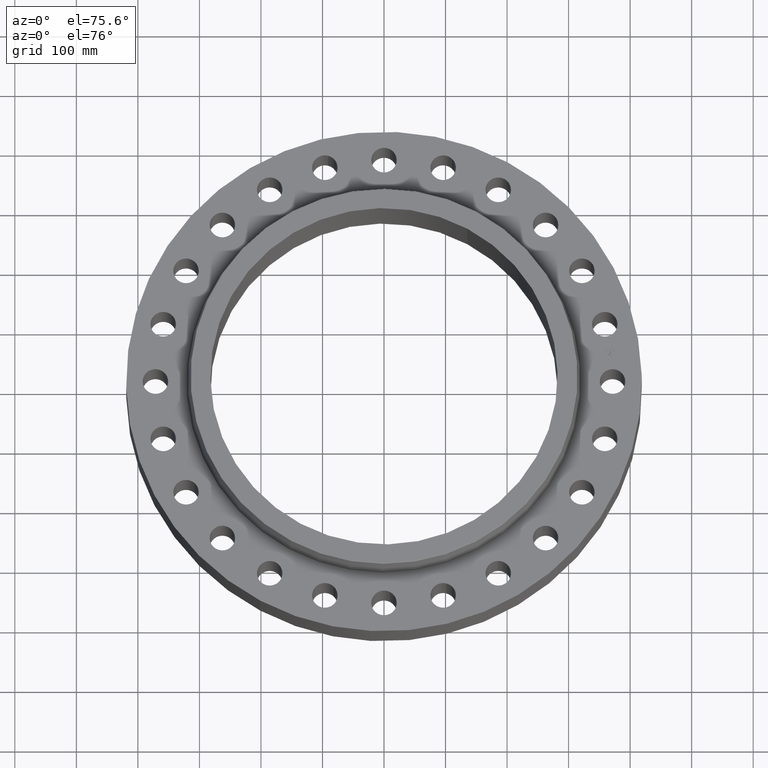
[diagram: clean part render]
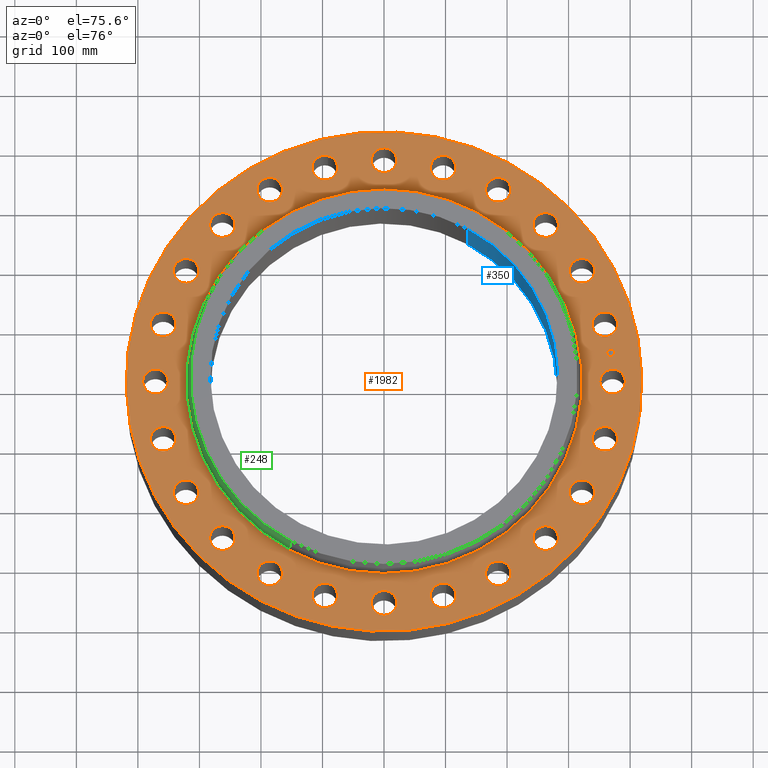
[diagram: same view with three faces highlighted in distinct colors, each labeled with its STEP entity id]
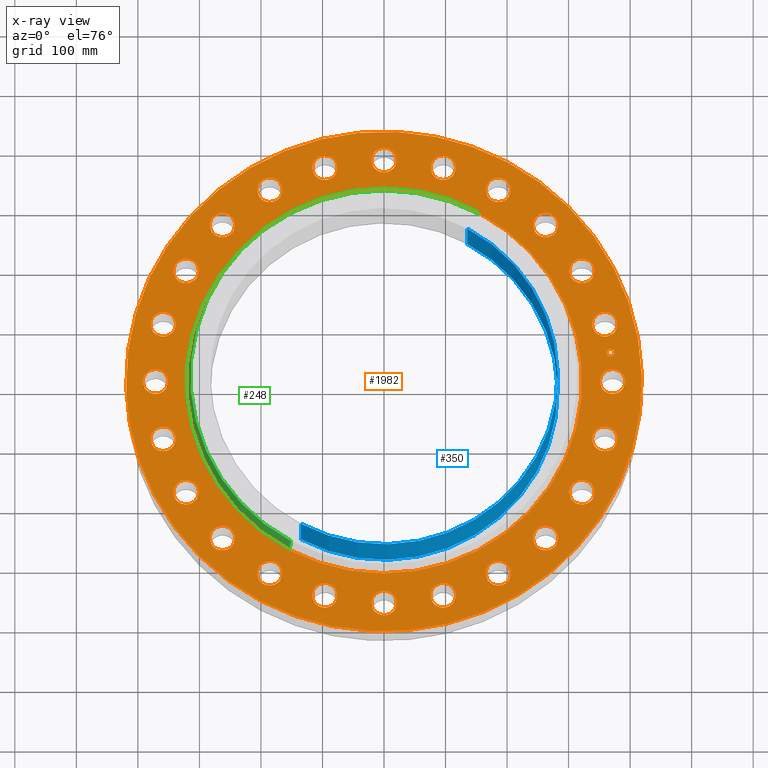
[diagram: x-ray of the same camera — body ghosted, the three highlighted faces saturated]
A machine part, auxiliary view with three faces highlighted in distinct colors.
The next image is the same camera in x-ray (body ghosted, the three faces saturated) — at least one of them is partly hidden behind the body in this view.
Their STEP definitions:

[orange] entity #1982 — the highlighted planar face has unit normal (0, 0, -1).
#65=AXIS2_PLACEMENT_3D('Circle Axis2P3D',#63,#64,$) ;
#82=AXIS2_PLACEMENT_3D('Circle Axis2P3D',#80,#81,$) ;
#115=AXIS2_PLACEMENT_3D('Circle Axis2P3D',#113,#114,$) ;
#139=AXIS2_PLACEMENT_3D('Circle Axis2P3D',#137,#138,$) ;
#156=AXIS2_PLACEMENT_3D('Circle Axis2P3D',#154,#155,$) ;
#191=AXIS2_PLACEMENT_3D('Circle Axis2P3D',#189,#190,$) ;
#887=AXIS2_PLACEMENT_3D('Circle Axis2P3D',#885,#886,$) ;
#899=AXIS2_PLACEMENT_3D('Circle Axis2P3D',#897,#898,$) ;
#930=AXIS2_PLACEMENT_3D('Circle Axis2P3D',#928,#929,$) ;
#942=AXIS2_PLACEMENT_3D('Circle Axis2P3D',#940,#941,$) ;
#973=AXIS2_PLACEMENT_3D('Circle Axis2P3D',#971,#972,$) ;
#985=AXIS2_PLACEMENT_3D('Circle Axis2P3D',#983,#984,$) ;
#1016=AXIS2_PLACEMENT_3D('Circle Axis2P3D',#1014,#1015,$) ;
#1028=AXIS2_PLACEMENT_3D('Circle Axis2P3D',#1026,#1027,$) ;
#1059=AXIS2_PLACEMENT_3D('Circle Axis2P3D',#1057,#1058,$) ;
#1071=AXIS2_PLACEMENT_3D('Circle Axis2P3D',#1069,#1070,$) ;
#1102=AXIS2_PLACEMENT_3D('Circle Axis2P3D',#1100,#1101,$) ;
#1114=AXIS2_PLACEMENT_3D('Circle Axis2P3D',#1112,#1113,$) ;
#1145=AXIS2_PLACEMENT_3D('Circle Axis2P3D',#1143,#1144,$) ;
#1157=AXIS2_PLACEMENT_3D('Circle Axis2P3D',#1155,#1156,$) ;
#1188=AXIS2_PLACEMENT_3D('Circle Axis2P3D',#1186,#1187,$) ;
#1200=AXIS2_PLACEMENT_3D('Circle Axis2P3D',#1198,#1199,$) ;
#1231=AXIS2_PLACEMENT_3D('Circle Axis2P3D',#1229,#1230,$) ;
#1243=AXIS2_PLACEMENT_3D('Circle Axis2P3D',#1241,#1242,$) ;
#1274=AXIS2_PLACEMENT_3D('Circle Axis2P3D',#1272,#1273,$) ;
#1286=AXIS2_PLACEMENT_3D('Circle Axis2P3D',#1284,#1285,$) ;
#1317=AXIS2_PLACEMENT_3D('Circle Axis2P3D',#1315,#1316,$) ;
#1329=AXIS2_PLACEMENT_3D('Circle Axis2P3D',#1327,#1328,$) ;
#1360=AXIS2_PLACEMENT_3D('Circle Axis2P3D',#1358,#1359,$) ;
#1372=AXIS2_PLACEMENT_3D('Circle Axis2P3D',#1370,#1371,$) ;
#1403=AXIS2_PLACEMENT_3D('Circle Axis2P3D',#1401,#1402,$) ;
#1415=AXIS2_PLACEMENT_3D('Circle Axis2P3D',#1413,#1414,$) ;
#1446=AXIS2_PLACEMENT_3D('Circle Axis2P3D',#1444,#1445,$) ;
#1458=AXIS2_PLACEMENT_3D('Circle Axis2P3D',#1456,#1457,$) ;
#1489=AXIS2_PLACEMENT_3D('Circle Axis2P3D',#1487,#1488,$) ;
#1501=AXIS2_PLACEMENT_3D('Circle Axis2P3D',#1499,#1500,$) ;
#1532=AXIS2_PLACEMENT_3D('Circle Axis2P3D',#1530,#1531,$) ;
#1544=AXIS2_PLACEMENT_3D('Circle Axis2P3D',#1542,#1543,$) ;
#1575=AXIS2_PLACEMENT_3D('Circle Axis2P3D',#1573,#1574,$) ;
#1587=AXIS2_PLACEMENT_3D('Circle Axis2P3D',#1585,#1586,$) ;
#1618=AXIS2_PLACEMENT_3D('Circle Axis2P3D',#1616,#1617,$) ;
#1630=AXIS2_PLACEMENT_3D('Circle Axis2P3D',#1628,#1629,$) ;
#1661=AXIS2_PLACEMENT_3D('Circle Axis2P3D',#1659,#1660,$) ;
#1673=AXIS2_PLACEMENT_3D('Circle Axis2P3D',#1671,#1672,$) ;
#1704=AXIS2_PLACEMENT_3D('Circle Axis2P3D',#1702,#1703,$) ;
#1716=AXIS2_PLACEMENT_3D('Circle Axis2P3D',#1714,#1715,$) ;
#1747=AXIS2_PLACEMENT_3D('Circle Axis2P3D',#1745,#1746,$) ;
#1759=AXIS2_PLACEMENT_3D('Circle Axis2P3D',#1757,#1758,$) ;
#1790=AXIS2_PLACEMENT_3D('Circle Axis2P3D',#1788,#1789,$) ;
#1802=AXIS2_PLACEMENT_3D('Circle Axis2P3D',#1800,#1801,$) ;
#1833=AXIS2_PLACEMENT_3D('Circle Axis2P3D',#1831,#1832,$) ;
#1845=AXIS2_PLACEMENT_3D('Circle Axis2P3D',#1843,#1844,$) ;
#1858=AXIS2_PLACEMENT_3D('Plane Axis2P3D',#1855,#1856,#1857) ;
#1966=AXIS2_PLACEMENT_3D('Circle Axis2P3D',#1964,#1965,$) ;
#1975=AXIS2_PLACEMENT_3D('Circle Axis2P3D',#1973,#1974,$) ;
#46=CARTESIAN_POINT('Vertex',(13.9097702121,0.390731813964,2.57000000001)) ;
#60=CARTESIAN_POINT('Vertex',(15.340229788,-0.390731813964,2.57000000001)) ;
#63=CARTESIAN_POINT('Axis2P3D Location',(14.6250000001,0.,2.57000000001)) ;
#80=CARTESIAN_POINT('Axis2P3D Location',(14.6250000001,0.,2.57000000001)) ;
#110=CARTESIAN_POINT('Vertex',(-7.910521387,-14.4801122712,2.57000000001)) ;
#113=CARTESIAN_POINT('Axis2P3D Location',(0.,0.,2.57000000001)) ;
#117=CARTESIAN_POINT('Vertex',(7.910521387,14.4801122712,2.57000000001)) ;
#137=CARTESIAN_POINT('Axis2P3D Location',(0.,0.,2.57000000001)) ;
#154=CARTESIAN_POINT('Axis2P3D Location',(0.,0.,2.57000000001)) ;
#158=CARTESIAN_POINT('Vertex',(6.07688457246,11.1236625962,2.57000000001)) ;
#160=CARTESIAN_POINT('Vertex',(-6.07688457246,-11.1236625962,2.57000000001)) ;
#189=CARTESIAN_POINT('Axis2P3D Location',(0.,0.,2.57000000001)) ;
#875=CARTESIAN_POINT('Vertex',(-13.5369351206,3.22269549363,2.57000000001)) ;
#882=CARTESIAN_POINT('Vertex',(-14.7163952985,4.34776157564,2.57000000001)) ;
#885=CARTESIAN_POINT('Axis2P3D Location',(-14.1266652095,3.78522853464,2.57000000001)) ;
#897=CARTESIAN_POINT('Axis2P3D Location',(-14.1266652095,3.78522853464,2.57000000001)) ;
#918=CARTESIAN_POINT('Vertex',(12.2415802715,-6.6165014291,2.57000000001)) ;
#925=CARTESIAN_POINT('Vertex',(13.0896627893,-8.00849857096,2.57000000001)) ;
#928=CARTESIAN_POINT('Axis2P3D Location',(12.6656215304,-7.31250000003,2.57000000001)) ;
#940=CARTESIAN_POINT('Axis2P3D Location',(12.6656215304,-7.31250000003,2.57000000001)) ;
#961=CARTESIAN_POINT('Vertex',(-12.2415802715,6.6165014291,2.57000000001)) ;
#968=CARTESIAN_POINT('Vertex',(-13.0896627893,8.00849857096,2.57000000001)) ;
#971=CARTESIAN_POINT('Axis2P3D Location',(-12.6656215304,7.31250000003,2.57000000001)) ;
#983=CARTESIAN_POINT('Axis2P3D Location',(-12.6656215304,7.31250000003,2.57000000001)) ;
#1004=CARTESIAN_POINT('Vertex',(10.111981957,-9.55940372645,2.57000000001)) ;
#1011=CARTESIAN_POINT('Vertex',(10.5708913928,-11.1234696233,2.57000000001)) ;
#1014=CARTESIAN_POINT('Axis2P3D Location',(10.3414366749,-10.3414366749,2.57000000001)) ;
#1026=CARTESIAN_POINT('Axis2P3D Location',(10.3414366749,-10.3414366749,2.57000000001)) ;
#1047=CARTESIAN_POINT('Vertex',(-10.111981957,9.55940372645,2.57000000001)) ;
#1054=CARTESIAN_POINT('Vertex',(-10.5708913928,11.1234696233,2.57000000001)) ;
#1057=CARTESIAN_POINT('Axis2P3D Location',(-10.3414366749,10.3414366749,2.57000000001)) ;
#1069=CARTESIAN_POINT('Axis2P3D Location',(-10.3414366749,10.3414366749,2.57000000001)) ;
#1090=CARTESIAN_POINT('Vertex',(7.29326878302,-11.8508484575,2.57000000001)) ;
#1097=CARTESIAN_POINT('Vertex',(7.33173121704,-13.4803946033,2.57000000001)) ;
#1100=CARTESIAN_POINT('Axis2P3D Location',(7.31250000003,-12.6656215304,2.57000000001)) ;
#1112=CARTESIAN_POINT('Axis2P3D Location',(7.31250000003,-12.6656215304,2.57000000001)) ;
#1133=CARTESIAN_POINT('Vertex',(-7.29326878302,11.8508484575,2.57000000001)) ;
#1140=CARTESIAN_POINT('Vertex',(-7.33173121704,13.4803946033,2.57000000001)) ;
#1143=CARTESIAN_POINT('Axis2P3D Location',(-7.31250000003,12.6656215304,2.57000000001)) ;
#1155=CARTESIAN_POINT('Axis2P3D Location',(-7.31250000003,12.6656215304,2.57000000001)) ;
#1176=CARTESIAN_POINT('Vertex',(3.97753139416,-13.3346774506,2.57000000001)) ;
#1183=CARTESIAN_POINT('Vertex',(3.59292567512,-14.9186529684,2.57000000001)) ;
#1186=CARTESIAN_POINT('Axis2P3D Location',(3.78522853464,-14.1266652095,2.57000000001)) ;
#1198=CARTESIAN_POINT('Axis2P3D Location',(3.78522853464,-14.1266652095,2.57000000001)) ;
#1219=CARTESIAN_POINT('Vertex',(-3.97753139416,13.3346774506,2.57000000001)) ;
#1226=CARTESIAN_POINT('Vertex',(-3.59292567512,14.9186529684,2.57000000001)) ;
#1229=CARTESIAN_POINT('Axis2P3D Location',(-3.78522853464,14.1266652095,2.57000000001)) ;
#1241=CARTESIAN_POINT('Axis2P3D Location',(-3.78522853464,14.1266652095,2.57000000001)) ;
#1262=CARTESIAN_POINT('Vertex',(0.390731813964,-13.9097702121,2.57000000001)) ;
#1269=CARTESIAN_POINT('Vertex',(-0.390731813964,-15.340229788,2.57000000001)) ;
#1272=CARTESIAN_POINT('Axis2P3D Location',(-1.34240690453E-015,-14.6250000001,2.57000000001)) ;
#1284=CARTESIAN_POINT('Axis2P3D Location',(-1.34240690453E-015,-14.6250000001,2.57000000001)) ;
#1305=CARTESIAN_POINT('Vertex',(-0.390731813964,13.9097702121,2.57000000001)) ;
#1312=CARTESIAN_POINT('Vertex',(0.390731813964,15.340229788,2.57000000001)) ;
#1315=CARTESIAN_POINT('Axis2P3D Location',(-2.68656891564E-015,14.6250000001,2.57000000001)) ;
#1327=CARTESIAN_POINT('Axis2P3D Location',(-2.68656891564E-015,14.6250000001,2.57000000001)) ;
#1348=CARTESIAN_POINT('Vertex',(-3.22269549363,-13.5369351206,2.57000000001)) ;
#1355=CARTESIAN_POINT('Vertex',(-4.34776157564,-14.7163952985,2.57000000001)) ;
#1358=CARTESIAN_POINT('Axis2P3D Location',(-3.78522853464,-14.1266652095,2.57000000001)) ;
#1370=CARTESIAN_POINT('Axis2P3D Location',(-3.78522853464,-14.1266652095,2.57000000001)) ;
#1391=CARTESIAN_POINT('Vertex',(3.22269549363,13.5369351206,2.57000000001)) ;
#1398=CARTESIAN_POINT('Vertex',(4.34776157564,14.7163952985,2.57000000001)) ;
#1401=CARTESIAN_POINT('Axis2P3D Location',(3.78522853464,14.1266652095,2.57000000001)) ;
#1413=CARTESIAN_POINT('Axis2P3D Location',(3.78522853464,14.1266652095,2.57000000001)) ;
#1434=CARTESIAN_POINT('Vertex',(-6.6165014291,-12.2415802715,2.57000000001)) ;
#1441=CARTESIAN_POINT('Vertex',(-8.00849857096,-13.0896627893,2.57000000001)) ;
#1444=CARTESIAN_POINT('Axis2P3D Location',(-7.31250000003,-12.6656215304,2.57000000001)) ;
#1456=CARTESIAN_POINT('Axis2P3D Location',(-7.31250000003,-12.6656215304,2.57000000001)) ;
#1477=CARTESIAN_POINT('Vertex',(6.6165014291,12.2415802715,2.57000000001)) ;
#1484=CARTESIAN_POINT('Vertex',(8.00849857096,13.0896627893,2.57000000001)) ;
#1487=CARTESIAN_POINT('Axis2P3D Location',(7.31250000003,12.6656215304,2.57000000001)) ;
#1499=CARTESIAN_POINT('Axis2P3D Location',(7.31250000003,12.6656215304,2.57000000001)) ;
#1520=CARTESIAN_POINT('Vertex',(-9.55940372645,-10.111981957,2.57000000001)) ;
#1527=CARTESIAN_POINT('Vertex',(-11.1234696233,-10.5708913928,2.57000000001)) ;
#1530=CARTESIAN_POINT('Axis2P3D Location',(-10.3414366749,-10.3414366749,2.57000000001)) ;
#1542=CARTESIAN_POINT('Axis2P3D Location',(-10.3414366749,-10.3414366749,2.57000000001)) ;
#1563=CARTESIAN_POINT('Vertex',(9.55940372645,10.111981957,2.57000000001)) ;
#1570=CARTESIAN_POINT('Vertex',(11.1234696233,10.5708913928,2.57000000001)) ;
#1573=CARTESIAN_POINT('Axis2P3D Location',(10.3414366749,10.3414366749,2.57000000001)) ;
#1585=CARTESIAN_POINT('Axis2P3D Location',(10.3414366749,10.3414366749,2.57000000001)) ;
#1606=CARTESIAN_POINT('Vertex',(-11.8508484575,-7.29326878302,2.57000000001)) ;
#1613=CARTESIAN_POINT('Vertex',(-13.4803946033,-7.33173121704,2.57000000001)) ;
#1616=CARTESIAN_POINT('Axis2P3D Location',(-12.6656215304,-7.31250000003,2.57000000001)) ;
#1628=CARTESIAN_POINT('Axis2P3D Location',(-12.6656215304,-7.31250000003,2.57000000001)) ;
#1649=CARTESIAN_POINT('Vertex',(11.8508484575,7.29326878302,2.57000000001)) ;
#1656=CARTESIAN_POINT('Vertex',(13.4803946033,7.33173121704,2.57000000001)) ;
#1659=CARTESIAN_POINT('Axis2P3D Location',(12.6656215304,7.31250000003,2.57000000001)) ;
#1671=CARTESIAN_POINT('Axis2P3D Location',(12.6656215304,7.31250000003,2.57000000001)) ;
#1692=CARTESIAN_POINT('Vertex',(-13.3346774506,-3.97753139416,2.57000000001)) ;
#1699=CARTESIAN_POINT('Vertex',(-14.9186529684,-3.59292567512,2.57000000001)) ;
#1702=CARTESIAN_POINT('Axis2P3D Location',(-14.1266652095,-3.78522853464,2.57000000001)) ;
#1714=CARTESIAN_POINT('Axis2P3D Location',(-14.1266652095,-3.78522853464,2.57000000001)) ;
#1735=CARTESIAN_POINT('Vertex',(13.3346774506,3.97753139416,2.57000000001)) ;
#1742=CARTESIAN_POINT('Vertex',(14.9186529684,3.59292567512,2.57000000001)) ;
#1745=CARTESIAN_POINT('Axis2P3D Location',(14.1266652095,3.78522853464,2.57000000001)) ;
#1757=CARTESIAN_POINT('Axis2P3D Location',(14.1266652095,3.78522853464,2.57000000001)) ;
#1778=CARTESIAN_POINT('Vertex',(-13.9097702121,-0.390731813964,2.57000000001)) ;
#1785=CARTESIAN_POINT('Vertex',(-15.340229788,0.390731813964,2.57000000001)) ;
#1788=CARTESIAN_POINT('Axis2P3D Location',(-14.6250000001,-1.79104594376E-015,2.57000000001)) ;
#1800=CARTESIAN_POINT('Axis2P3D Location',(-14.6250000001,-1.79104594376E-015,2.57000000001)) ;
#1821=CARTESIAN_POINT('Vertex',(13.5369351206,-3.22269549363,2.57000000001)) ;
#1828=CARTESIAN_POINT('Vertex',(14.7163952985,-4.34776157564,2.57000000001)) ;
#1831=CARTESIAN_POINT('Axis2P3D Location',(14.1266652095,-3.78522853464,2.57000000001)) ;
#1843=CARTESIAN_POINT('Axis2P3D Location',(14.1266652095,-3.78522853464,2.57000000001)) ;
#1855=CARTESIAN_POINT('Axis2P3D Location',(0.,16.5000000001,2.57000000001)) ;
#1964=CARTESIAN_POINT('Axis2P3D Location',(14.4998810976,1.90894556123,2.57000000001)) ;
#1968=CARTESIAN_POINT('Vertex',(14.4675758651,2.15432816442,2.57000000001)) ;
#1970=CARTESIAN_POINT('Vertex',(14.5321863302,1.66356295803,2.57000000001)) ;
#1973=CARTESIAN_POINT('Axis2P3D Location',(14.4998810976,1.90894556123,2.57000000001)) ;
#64=DIRECTION('Axis2P3D Direction',(0.,-0.,-0.0393700787402)) ;
#81=DIRECTION('Axis2P3D Direction',(0.,-0.,-0.0393700787402)) ;
#114=DIRECTION('Axis2P3D Direction',(0.,0.,-0.0393700787402)) ;
#138=DIRECTION('Axis2P3D Direction',(0.,0.,-0.0393700787402)) ;
#155=DIRECTION('Axis2P3D Direction',(0.,0.,-0.0393700787402)) ;
#190=DIRECTION('Axis2P3D Direction',(0.,0.,-0.0393700787402)) ;
#886=DIRECTION('Axis2P3D Direction',(0.,0.,-0.0393700787402)) ;
#898=DIRECTION('Axis2P3D Direction',(0.,0.,-0.0393700787402)) ;
#929=DIRECTION('Axis2P3D Direction',(0.,-0.,-0.0393700787402)) ;
#941=DIRECTION('Axis2P3D Direction',(0.,-0.,-0.0393700787402)) ;
#972=DIRECTION('Axis2P3D Direction',(0.,0.,-0.0393700787402)) ;
#984=DIRECTION('Axis2P3D Direction',(0.,0.,-0.0393700787402)) ;
#1015=DIRECTION('Axis2P3D Direction',(0.,-0.,-0.0393700787402)) ;
#1027=DIRECTION('Axis2P3D Direction',(0.,-0.,-0.0393700787402)) ;
#1058=DIRECTION('Axis2P3D Direction',(0.,0.,-0.0393700787402)) ;
#1070=DIRECTION('Axis2P3D Direction',(0.,0.,-0.0393700787402)) ;
#1101=DIRECTION('Axis2P3D Direction',(0.,-0.,-0.0393700787402)) ;
#1113=DIRECTION('Axis2P3D Direction',(0.,-0.,-0.0393700787402)) ;
#1144=DIRECTION('Axis2P3D Direction',(0.,0.,-0.0393700787402)) ;
#1156=DIRECTION('Axis2P3D Direction',(0.,0.,-0.0393700787402)) ;
#1187=DIRECTION('Axis2P3D Direction',(0.,-0.,-0.0393700787402)) ;
#1199=DIRECTION('Axis2P3D Direction',(0.,-0.,-0.0393700787402)) ;
#1230=DIRECTION('Axis2P3D Direction',(0.,0.,-0.0393700787402)) ;
#1242=DIRECTION('Axis2P3D Direction',(0.,0.,-0.0393700787402)) ;
#1273=DIRECTION('Axis2P3D Direction',(0.,-0.,-0.0393700787402)) ;
#1285=DIRECTION('Axis2P3D Direction',(0.,-0.,-0.0393700787402)) ;
#1316=DIRECTION('Axis2P3D Direction',(0.,0.,-0.0393700787402)) ;
#1328=DIRECTION('Axis2P3D Direction',(0.,0.,-0.0393700787402)) ;
#1359=DIRECTION('Axis2P3D Direction',(-0.,0.,-0.0393700787402)) ;
#1371=DIRECTION('Axis2P3D Direction',(-0.,0.,-0.0393700787402)) ;
#1402=DIRECTION('Axis2P3D Direction',(0.,0.,-0.0393700787402)) ;
#1414=DIRECTION('Axis2P3D Direction',(0.,0.,-0.0393700787402)) ;
#1445=DIRECTION('Axis2P3D Direction',(-0.,0.,-0.0393700787402)) ;
#1457=DIRECTION('Axis2P3D Direction',(-0.,0.,-0.0393700787402)) ;
#1488=DIRECTION('Axis2P3D Direction',(0.,0.,-0.0393700787402)) ;
#1500=DIRECTION('Axis2P3D Direction',(0.,0.,-0.0393700787402)) ;
#1531=DIRECTION('Axis2P3D Direction',(-0.,0.,-0.0393700787402)) ;
#1543=DIRECTION('Axis2P3D Direction',(-0.,0.,-0.0393700787402)) ;
#1574=DIRECTION('Axis2P3D Direction',(0.,0.,-0.0393700787402)) ;
#1586=DIRECTION('Axis2P3D Direction',(0.,0.,-0.0393700787402)) ;
#1617=DIRECTION('Axis2P3D Direction',(-0.,0.,-0.0393700787402)) ;
#1629=DIRECTION('Axis2P3D Direction',(-0.,0.,-0.0393700787402)) ;
#1660=DIRECTION('Axis2P3D Direction',(0.,0.,-0.0393700787402)) ;
#1672=DIRECTION('Axis2P3D Direction',(0.,0.,-0.0393700787402)) ;
#1703=DIRECTION('Axis2P3D Direction',(-0.,0.,-0.0393700787402)) ;
#1715=DIRECTION('Axis2P3D Direction',(-0.,0.,-0.0393700787402)) ;
#1746=DIRECTION('Axis2P3D Direction',(0.,0.,-0.0393700787402)) ;
#1758=DIRECTION('Axis2P3D Direction',(0.,0.,-0.0393700787402)) ;
#1789=DIRECTION('Axis2P3D Direction',(-0.,0.,-0.0393700787402)) ;
#1801=DIRECTION('Axis2P3D Direction',(-0.,0.,-0.0393700787402)) ;
#1832=DIRECTION('Axis2P3D Direction',(0.,-0.,-0.0393700787402)) ;
#1844=DIRECTION('Axis2P3D Direction',(0.,-0.,-0.0393700787402)) ;
#1856=DIRECTION('Axis2P3D Direction',(0.,0.,-0.0393700787402)) ;
#1857=DIRECTION('Axis2P3D XDirection',(0.0393700787402,0.,0.)) ;
#1965=DIRECTION('Axis2P3D Direction',(0.,0.,-0.0393700787402)) ;
#1974=DIRECTION('Axis2P3D Direction',(0.,0.,-0.0393700787402)) ;
#1861=ORIENTED_EDGE('',*,*,#141,.F.) ;
#1862=ORIENTED_EDGE('',*,*,#119,.F.) ;
#1865=ORIENTED_EDGE('',*,*,#67,.T.) ;
#1866=ORIENTED_EDGE('',*,*,#84,.T.) ;
#1869=ORIENTED_EDGE('',*,*,#193,.T.) ;
#1870=ORIENTED_EDGE('',*,*,#162,.T.) ;
#1873=ORIENTED_EDGE('',*,*,#1847,.T.) ;
#1874=ORIENTED_EDGE('',*,*,#1835,.T.) ;
#1877=ORIENTED_EDGE('',*,*,#944,.T.) ;
#1878=ORIENTED_EDGE('',*,*,#932,.T.) ;
#1881=ORIENTED_EDGE('',*,*,#1030,.T.) ;
#1882=ORIENTED_EDGE('',*,*,#1018,.T.) ;
#1885=ORIENTED_EDGE('',*,*,#1116,.T.) ;
#1886=ORIENTED_EDGE('',*,*,#1104,.T.) ;
#1889=ORIENTED_EDGE('',*,*,#1202,.T.) ;
#1890=ORIENTED_EDGE('',*,*,#1190,.T.) ;
#1893=ORIENTED_EDGE('',*,*,#1288,.T.) ;
#1894=ORIENTED_EDGE('',*,*,#1276,.T.) ;
#1897=ORIENTED_EDGE('',*,*,#1374,.T.) ;
#1898=ORIENTED_EDGE('',*,*,#1362,.T.) ;
#1901=ORIENTED_EDGE('',*,*,#1460,.T.) ;
#1902=ORIENTED_EDGE('',*,*,#1448,.T.) ;
#1905=ORIENTED_EDGE('',*,*,#1546,.T.) ;
#1906=ORIENTED_EDGE('',*,*,#1534,.T.) ;
#1909=ORIENTED_EDGE('',*,*,#1632,.T.) ;
#1910=ORIENTED_EDGE('',*,*,#1620,.T.) ;
#1913=ORIENTED_EDGE('',*,*,#1718,.T.) ;
#1914=ORIENTED_EDGE('',*,*,#1706,.T.) ;
#1917=ORIENTED_EDGE('',*,*,#1804,.T.) ;
#1918=ORIENTED_EDGE('',*,*,#1792,.T.) ;
#1921=ORIENTED_EDGE('',*,*,#901,.T.) ;
#1922=ORIENTED_EDGE('',*,*,#889,.T.) ;
#1925=ORIENTED_EDGE('',*,*,#987,.T.) ;
#1926=ORIENTED_EDGE('',*,*,#975,.T.) ;
#1929=ORIENTED_EDGE('',*,*,#1073,.T.) ;
#1930=ORIENTED_EDGE('',*,*,#1061,.T.) ;
#1933=ORIENTED_EDGE('',*,*,#1159,.T.) ;
#1934=ORIENTED_EDGE('',*,*,#1147,.T.) ;
#1937=ORIENTED_EDGE('',*,*,#1245,.T.) ;
#1938=ORIENTED_EDGE('',*,*,#1233,.T.) ;
#1941=ORIENTED_EDGE('',*,*,#1331,.T.) ;
#1942=ORIENTED_EDGE('',*,*,#1319,.T.) ;
#1945=ORIENTED_EDGE('',*,*,#1417,.T.) ;
#1946=ORIENTED_EDGE('',*,*,#1405,.T.) ;
#1949=ORIENTED_EDGE('',*,*,#1503,.T.) ;
#1950=ORIENTED_EDGE('',*,*,#1491,.T.) ;
#1953=ORIENTED_EDGE('',*,*,#1589,.T.) ;
#1954=ORIENTED_EDGE('',*,*,#1577,.T.) ;
#1957=ORIENTED_EDGE('',*,*,#1675,.T.) ;
#1958=ORIENTED_EDGE('',*,*,#1663,.T.) ;
#1961=ORIENTED_EDGE('',*,*,#1761,.T.) ;
#1962=ORIENTED_EDGE('',*,*,#1749,.T.) ;
#1979=ORIENTED_EDGE('',*,*,#1972,.T.) ;
#1980=ORIENTED_EDGE('',*,*,#1977,.T.) ;
#1867=FACE_BOUND('',#1864,.T.) ;
#1871=FACE_BOUND('',#1868,.T.) ;
#1875=FACE_BOUND('',#1872,.T.) ;
#1879=FACE_BOUND('',#1876,.T.) ;
#1883=FACE_BOUND('',#1880,.T.) ;
#1887=FACE_BOUND('',#1884,.T.) ;
#1891=FACE_BOUND('',#1888,.T.) ;
#1895=FACE_BOUND('',#1892,.T.) ;
#1899=FACE_BOUND('',#1896,.T.) ;
#1903=FACE_BOUND('',#1900,.T.) ;
#1907=FACE_BOUND('',#1904,.T.) ;
#1911=FACE_BOUND('',#1908,.T.) ;
#1915=FACE_BOUND('',#1912,.T.) ;
#1919=FACE_BOUND('',#1916,.T.) ;
#1923=FACE_BOUND('',#1920,.T.) ;
#1927=FACE_BOUND('',#1924,.T.) ;
#1931=FACE_BOUND('',#1928,.T.) ;
#1935=FACE_BOUND('',#1932,.T.) ;
#1939=FACE_BOUND('',#1936,.T.) ;
#1943=FACE_BOUND('',#1940,.T.) ;
#1947=FACE_BOUND('',#1944,.T.) ;
#1951=FACE_BOUND('',#1948,.T.) ;
#1955=FACE_BOUND('',#1952,.T.) ;
#1959=FACE_BOUND('',#1956,.T.) ;
#1963=FACE_BOUND('',#1960,.T.) ;
#1981=FACE_BOUND('',#1978,.T.) ;
#1982=ADVANCED_FACE('PartBody',(#1863,#1867,#1871,#1875,#1879,#1883,#1887,#1891,#1895,#1899,#1903,#1907,#1911,#1915,#1919,#1923,#1927,#1931,#1935,#1939,#1943,#1947,#1951,#1955,#1959,#1963,#1981),#1859,.F.) ;
#66=CIRCLE('generated circle',#65,0.815000000003) ;
#83=CIRCLE('generated circle',#82,0.815000000003) ;
#116=CIRCLE('generated circle',#115,16.5000000001) ;
#140=CIRCLE('generated circle',#139,16.5000000001) ;
#157=CIRCLE('generated circle',#156,12.6753459779) ;
#192=CIRCLE('generated circle',#191,12.6753459779) ;
#888=CIRCLE('generated circle',#887,0.815000000003) ;
#900=CIRCLE('generated circle',#899,0.815000000003) ;
#931=CIRCLE('generated circle',#930,0.815000000003) ;
#943=CIRCLE('generated circle',#942,0.815000000003) ;
#974=CIRCLE('generated circle',#973,0.815000000003) ;
#986=CIRCLE('generated circle',#985,0.815000000003) ;
#1017=CIRCLE('generated circle',#1016,0.815000000003) ;
#1029=CIRCLE('generated circle',#1028,0.815000000003) ;
#1060=CIRCLE('generated circle',#1059,0.815000000003) ;
#1072=CIRCLE('generated circle',#1071,0.815000000003) ;
#1103=CIRCLE('generated circle',#1102,0.815000000003) ;
#1115=CIRCLE('generated circle',#1114,0.815000000003) ;
#1146=CIRCLE('generated circle',#1145,0.815000000003) ;
#1158=CIRCLE('generated circle',#1157,0.815000000003) ;
#1189=CIRCLE('generated circle',#1188,0.815000000003) ;
#1201=CIRCLE('generated circle',#1200,0.815000000003) ;
#1232=CIRCLE('generated circle',#1231,0.815000000003) ;
#1244=CIRCLE('generated circle',#1243,0.815000000003) ;
#1275=CIRCLE('generated circle',#1274,0.815000000003) ;
#1287=CIRCLE('generated circle',#1286,0.815000000003) ;
#1318=CIRCLE('generated circle',#1317,0.815000000003) ;
#1330=CIRCLE('generated circle',#1329,0.815000000003) ;
#1361=CIRCLE('generated circle',#1360,0.815000000003) ;
#1373=CIRCLE('generated circle',#1372,0.815000000003) ;
#1404=CIRCLE('generated circle',#1403,0.815000000003) ;
#1416=CIRCLE('generated circle',#1415,0.815000000003) ;
#1447=CIRCLE('generated circle',#1446,0.815000000003) ;
#1459=CIRCLE('generated circle',#1458,0.815000000003) ;
#1490=CIRCLE('generated circle',#1489,0.815000000003) ;
#1502=CIRCLE('generated circle',#1501,0.815000000003) ;
#1533=CIRCLE('generated circle',#1532,0.815000000003) ;
#1545=CIRCLE('generated circle',#1544,0.815000000003) ;
#1576=CIRCLE('generated circle',#1575,0.815000000003) ;
#1588=CIRCLE('generated circle',#1587,0.815000000003) ;
#1619=CIRCLE('generated circle',#1618,0.815000000003) ;
#1631=CIRCLE('generated circle',#1630,0.815000000003) ;
#1662=CIRCLE('generated circle',#1661,0.815000000003) ;
#1674=CIRCLE('generated circle',#1673,0.815000000003) ;
#1705=CIRCLE('generated circle',#1704,0.815000000003) ;
#1717=CIRCLE('generated circle',#1716,0.815000000003) ;
#1748=CIRCLE('generated circle',#1747,0.815000000003) ;
#1760=CIRCLE('generated circle',#1759,0.815000000003) ;
#1791=CIRCLE('generated circle',#1790,0.815000000003) ;
#1803=CIRCLE('generated circle',#1802,0.815000000003) ;
#1834=CIRCLE('generated circle',#1833,0.815000000003) ;
#1846=CIRCLE('generated circle',#1845,0.815000000003) ;
#1967=CIRCLE('generated circle',#1966,0.247500000001) ;
#1976=CIRCLE('generated circle',#1975,0.247500000001) ;
#67=EDGE_CURVE('',#47,#61,#66,.T.) ;
#84=EDGE_CURVE('',#61,#47,#83,.T.) ;
#119=EDGE_CURVE('',#111,#118,#116,.T.) ;
#141=EDGE_CURVE('',#118,#111,#140,.T.) ;
#162=EDGE_CURVE('',#159,#161,#157,.T.) ;
#193=EDGE_CURVE('',#161,#159,#192,.T.) ;
#889=EDGE_CURVE('',#876,#883,#888,.T.) ;
#901=EDGE_CURVE('',#883,#876,#900,.T.) ;
#932=EDGE_CURVE('',#919,#926,#931,.T.) ;
#944=EDGE_CURVE('',#926,#919,#943,.T.) ;
#975=EDGE_CURVE('',#962,#969,#974,.T.) ;
#987=EDGE_CURVE('',#969,#962,#986,.T.) ;
#1018=EDGE_CURVE('',#1005,#1012,#1017,.T.) ;
#1030=EDGE_CURVE('',#1012,#1005,#1029,.T.) ;
#1061=EDGE_CURVE('',#1048,#1055,#1060,.T.) ;
#1073=EDGE_CURVE('',#1055,#1048,#1072,.T.) ;
#1104=EDGE_CURVE('',#1091,#1098,#1103,.T.) ;
#1116=EDGE_CURVE('',#1098,#1091,#1115,.T.) ;
#1147=EDGE_CURVE('',#1134,#1141,#1146,.T.) ;
#1159=EDGE_CURVE('',#1141,#1134,#1158,.T.) ;
#1190=EDGE_CURVE('',#1177,#1184,#1189,.T.) ;
#1202=EDGE_CURVE('',#1184,#1177,#1201,.T.) ;
#1233=EDGE_CURVE('',#1220,#1227,#1232,.T.) ;
#1245=EDGE_CURVE('',#1227,#1220,#1244,.T.) ;
#1276=EDGE_CURVE('',#1263,#1270,#1275,.T.) ;
#1288=EDGE_CURVE('',#1270,#1263,#1287,.T.) ;
#1319=EDGE_CURVE('',#1306,#1313,#1318,.T.) ;
#1331=EDGE_CURVE('',#1313,#1306,#1330,.T.) ;
#1362=EDGE_CURVE('',#1349,#1356,#1361,.T.) ;
#1374=EDGE_CURVE('',#1356,#1349,#1373,.T.) ;
#1405=EDGE_CURVE('',#1392,#1399,#1404,.T.) ;
#1417=EDGE_CURVE('',#1399,#1392,#1416,.T.) ;
#1448=EDGE_CURVE('',#1435,#1442,#1447,.T.) ;
#1460=EDGE_CURVE('',#1442,#1435,#1459,.T.) ;
#1491=EDGE_CURVE('',#1478,#1485,#1490,.T.) ;
#1503=EDGE_CURVE('',#1485,#1478,#1502,.T.) ;
#1534=EDGE_CURVE('',#1521,#1528,#1533,.T.) ;
#1546=EDGE_CURVE('',#1528,#1521,#1545,.T.) ;
#1577=EDGE_CURVE('',#1564,#1571,#1576,.T.) ;
#1589=EDGE_CURVE('',#1571,#1564,#1588,.T.) ;
#1620=EDGE_CURVE('',#1607,#1614,#1619,.T.) ;
#1632=EDGE_CURVE('',#1614,#1607,#1631,.T.) ;
#1663=EDGE_CURVE('',#1650,#1657,#1662,.T.) ;
#1675=EDGE_CURVE('',#1657,#1650,#1674,.T.) ;
#1706=EDGE_CURVE('',#1693,#1700,#1705,.T.) ;
#1718=EDGE_CURVE('',#1700,#1693,#1717,.T.) ;
#1749=EDGE_CURVE('',#1736,#1743,#1748,.T.) ;
#1761=EDGE_CURVE('',#1743,#1736,#1760,.T.) ;
#1792=EDGE_CURVE('',#1779,#1786,#1791,.T.) ;
#1804=EDGE_CURVE('',#1786,#1779,#1803,.T.) ;
#1835=EDGE_CURVE('',#1822,#1829,#1834,.T.) ;
#1847=EDGE_CURVE('',#1829,#1822,#1846,.T.) ;
#1972=EDGE_CURVE('',#1969,#1971,#1967,.T.) ;
#1977=EDGE_CURVE('',#1971,#1969,#1976,.T.) ;
#1860=EDGE_LOOP('',(#1861,#1862)) ;
#1864=EDGE_LOOP('',(#1865,#1866)) ;
#1868=EDGE_LOOP('',(#1869,#1870)) ;
#1872=EDGE_LOOP('',(#1873,#1874)) ;
#1876=EDGE_LOOP('',(#1877,#1878)) ;
#1880=EDGE_LOOP('',(#1881,#1882)) ;
#1884=EDGE_LOOP('',(#1885,#1886)) ;
#1888=EDGE_LOOP('',(#1889,#1890)) ;
#1892=EDGE_LOOP('',(#1893,#1894)) ;
#1896=EDGE_LOOP('',(#1897,#1898)) ;
#1900=EDGE_LOOP('',(#1901,#1902)) ;
#1904=EDGE_LOOP('',(#1905,#1906)) ;
#1908=EDGE_LOOP('',(#1909,#1910)) ;
#1912=EDGE_LOOP('',(#1913,#1914)) ;
#1916=EDGE_LOOP('',(#1917,#1918)) ;
#1920=EDGE_LOOP('',(#1921,#1922)) ;
#1924=EDGE_LOOP('',(#1925,#1926)) ;
#1928=EDGE_LOOP('',(#1929,#1930)) ;
#1932=EDGE_LOOP('',(#1933,#1934)) ;
#1936=EDGE_LOOP('',(#1937,#1938)) ;
#1940=EDGE_LOOP('',(#1941,#1942)) ;
#1944=EDGE_LOOP('',(#1945,#1946)) ;
#1948=EDGE_LOOP('',(#1949,#1950)) ;
#1952=EDGE_LOOP('',(#1953,#1954)) ;
#1956=EDGE_LOOP('',(#1957,#1958)) ;
#1960=EDGE_LOOP('',(#1961,#1962)) ;
#1978=EDGE_LOOP('',(#1979,#1980)) ;
#1863=FACE_OUTER_BOUND('',#1860,.T.) ;
#1859=PLANE('',#1858) ;
#47=VERTEX_POINT('',#46) ;
#61=VERTEX_POINT('',#60) ;
#111=VERTEX_POINT('',#110) ;
#118=VERTEX_POINT('',#117) ;
#159=VERTEX_POINT('',#158) ;
#161=VERTEX_POINT('',#160) ;
#876=VERTEX_POINT('',#875) ;
#883=VERTEX_POINT('',#882) ;
#919=VERTEX_POINT('',#918) ;
#926=VERTEX_POINT('',#925) ;
#962=VERTEX_POINT('',#961) ;
#969=VERTEX_POINT('',#968) ;
#1005=VERTEX_POINT('',#1004) ;
#1012=VERTEX_POINT('',#1011) ;
#1048=VERTEX_POINT('',#1047) ;
#1055=VERTEX_POINT('',#1054) ;
#1091=VERTEX_POINT('',#1090) ;
#1098=VERTEX_POINT('',#1097) ;
#1134=VERTEX_POINT('',#1133) ;
#1141=VERTEX_POINT('',#1140) ;
#1177=VERTEX_POINT('',#1176) ;
#1184=VERTEX_POINT('',#1183) ;
#1220=VERTEX_POINT('',#1219) ;
#1227=VERTEX_POINT('',#1226) ;
#1263=VERTEX_POINT('',#1262) ;
#1270=VERTEX_POINT('',#1269) ;
#1306=VERTEX_POINT('',#1305) ;
#1313=VERTEX_POINT('',#1312) ;
#1349=VERTEX_POINT('',#1348) ;
#1356=VERTEX_POINT('',#1355) ;
#1392=VERTEX_POINT('',#1391) ;
#1399=VERTEX_POINT('',#1398) ;
#1435=VERTEX_POINT('',#1434) ;
#1442=VERTEX_POINT('',#1441) ;
#1478=VERTEX_POINT('',#1477) ;
#1485=VERTEX_POINT('',#1484) ;
#1521=VERTEX_POINT('',#1520) ;
#1528=VERTEX_POINT('',#1527) ;
#1564=VERTEX_POINT('',#1563) ;
#1571=VERTEX_POINT('',#1570) ;
#1607=VERTEX_POINT('',#1606) ;
#1614=VERTEX_POINT('',#1613) ;
#1650=VERTEX_POINT('',#1649) ;
#1657=VERTEX_POINT('',#1656) ;
#1693=VERTEX_POINT('',#1692) ;
#1700=VERTEX_POINT('',#1699) ;
#1736=VERTEX_POINT('',#1735) ;
#1743=VERTEX_POINT('',#1742) ;
#1779=VERTEX_POINT('',#1778) ;
#1786=VERTEX_POINT('',#1785) ;
#1822=VERTEX_POINT('',#1821) ;
#1829=VERTEX_POINT('',#1828) ;
#1969=VERTEX_POINT('',#1968) ;
#1971=VERTEX_POINT('',#1970) ;

[blue] entity #350 — the highlighted cylindrical surface (partial cylindrical patch) has radius 282.194 mm, axis along (0, 0, -1).
#312=AXIS2_PLACEMENT_3D('Circle Axis2P3D',#310,#311,$) ;
#323=AXIS2_PLACEMENT_3D('Cylinder Axis2P3D',#320,#321,#322) ;
#334=AXIS2_PLACEMENT_3D('Circle Axis2P3D',#332,#333,$) ;
#305=CARTESIAN_POINT('Vertex',(-5.32641773391,-9.74994226264,3.93000000002)) ;
#307=CARTESIAN_POINT('Vertex',(5.32641773391,9.74994226264,3.93000000002)) ;
#310=CARTESIAN_POINT('Axis2P3D Location',(0.,0.,3.93000000002)) ;
#320=CARTESIAN_POINT('Axis2P3D Location',(0.,0.,1.93375000001)) ;
#325=CARTESIAN_POINT('Line Origine',(5.32641773391,9.74994226264,1.93375000001)) ;
#329=CARTESIAN_POINT('Vertex',(5.32641773391,9.74994226264,-0.0625000000003)) ;
#332=CARTESIAN_POINT('Axis2P3D Location',(0.,0.,-0.0625000000003)) ;
#336=CARTESIAN_POINT('Vertex',(-5.32641773391,-9.74994226264,-0.0625000000003)) ;
#339=CARTESIAN_POINT('Line Origine',(-5.32641773391,-9.74994226264,1.93375000001)) ;
#311=DIRECTION('Axis2P3D Direction',(0.,0.,-0.0393700787402)) ;
#321=DIRECTION('Axis2P3D Direction',(0.,0.,-0.0393700787402)) ;
#322=DIRECTION('Axis2P3D XDirection',(-0.0188750212049,-0.0345504945626,0.)) ;
#326=DIRECTION('Vector Direction',(0.,0.,-0.0393700787402)) ;
#333=DIRECTION('Axis2P3D Direction',(0.,0.,-0.0393700787402)) ;
#340=DIRECTION('Vector Direction',(0.,0.,-0.0393700787402)) ;
#327=VECTOR('Line Direction',#326,0.0393700787402) ;
#341=VECTOR('Line Direction',#340,0.0393700787402) ;
#345=ORIENTED_EDGE('',*,*,#314,.F.) ;
#346=ORIENTED_EDGE('',*,*,#331,.T.) ;
#347=ORIENTED_EDGE('',*,*,#338,.T.) ;
#348=ORIENTED_EDGE('',*,*,#343,.F.) ;
#350=ADVANCED_FACE('PartBody',(#349),#324,.F.) ;
#313=CIRCLE('generated circle',#312,11.11) ;
#335=CIRCLE('generated circle',#334,11.11) ;
#324=CYLINDRICAL_SURFACE('generated cylinder',#323,11.11) ;
#314=EDGE_CURVE('',#308,#306,#313,.T.) ;
#331=EDGE_CURVE('',#308,#330,#328,.T.) ;
#338=EDGE_CURVE('',#330,#337,#335,.T.) ;
#343=EDGE_CURVE('',#306,#337,#342,.T.) ;
#344=EDGE_LOOP('',(#345,#346,#347,#348)) ;
#349=FACE_OUTER_BOUND('',#344,.T.) ;
#328=LINE('Line',#325,#327) ;
#342=LINE('Line',#339,#341) ;
#306=VERTEX_POINT('',#305) ;
#308=VERTEX_POINT('',#307) ;
#330=VERTEX_POINT('',#329) ;
#337=VERTEX_POINT('',#336) ;

[green] entity #248 — the highlighted conical surface has half-angle 10 deg.
#196=AXIS2_PLACEMENT_3D('Circle Axis2P3D',#194,#195,$) ;
#209=AXIS2_PLACEMENT_3D('Cone Axis2P3D',#206,#207,#208) ;
#239=AXIS2_PLACEMENT_3D('Circle Axis2P3D',#237,#238,$) ;
#167=CARTESIAN_POINT('Vertex',(6.04855605321,11.0718075895,2.61958110935)) ;
#174=CARTESIAN_POINT('Vertex',(-6.04855605321,-11.0718075895,2.61958110935)) ;
#194=CARTESIAN_POINT('Axis2P3D Location',(0.,0.,2.61958110935)) ;
#206=CARTESIAN_POINT('Axis2P3D Location',(0.,0.,3.88041889068)) ;
#211=CARTESIAN_POINT('Line Origine',(5.99526317767,10.9742556352,3.25000000001)) ;
#215=CARTESIAN_POINT('Vertex',(5.94197030212,10.8767036808,3.88041889068)) ;
#222=CARTESIAN_POINT('Vertex',(-5.94197030212,-10.8767036808,3.88041889068)) ;
#225=CARTESIAN_POINT('Line Origine',(-5.99526317767,-10.9742556352,3.25000000001)) ;
#237=CARTESIAN_POINT('Axis2P3D Location',(0.,0.,3.88041889068)) ;
#195=DIRECTION('Axis2P3D Direction',(0.,0.,-0.0393700787402)) ;
#207=DIRECTION('Axis2P3D Direction',(0.,0.,-0.0393700787402)) ;
#208=DIRECTION('Axis2P3D XDirection',(-0.0188750212049,-0.0345504945626,0.)) ;
#212=DIRECTION('Vector Direction',(0.00327761303565,0.00599963041829,-0.03877195878)) ;
#226=DIRECTION('Vector Direction',(-0.00327761303565,-0.00599963041829,-0.03877195878)) ;
#238=DIRECTION('Axis2P3D Direction',(0.,0.,-0.0393700787402)) ;
#213=VECTOR('Line Direction',#212,0.0393700787402) ;
#227=VECTOR('Line Direction',#226,0.0393700787402) ;
#243=ORIENTED_EDGE('',*,*,#198,.F.) ;
#244=ORIENTED_EDGE('',*,*,#229,.T.) ;
#245=ORIENTED_EDGE('',*,*,#241,.T.) ;
#246=ORIENTED_EDGE('',*,*,#217,.F.) ;
#248=ADVANCED_FACE('PartBody',(#247),#210,.T.) ;
#197=CIRCLE('generated circle',#196,12.6162575127) ;
#240=CIRCLE('generated circle',#239,12.3939377936) ;
#210=CONICAL_SURFACE('Cone',#209,12.3939377936,0.174532925199) ;
#198=EDGE_CURVE('',#175,#168,#197,.T.) ;
#217=EDGE_CURVE('',#168,#216,#214,.F.) ;
#229=EDGE_CURVE('',#175,#223,#228,.F.) ;
#241=EDGE_CURVE('',#223,#216,#240,.T.) ;
#242=EDGE_LOOP('',(#243,#244,#245,#246)) ;
#247=FACE_OUTER_BOUND('',#242,.T.) ;
#214=LINE('Line',#211,#213) ;
#228=LINE('Line',#225,#227) ;
#168=VERTEX_POINT('',#167) ;
#175=VERTEX_POINT('',#174) ;
#216=VERTEX_POINT('',#215) ;
#223=VERTEX_POINT('',#222) ;